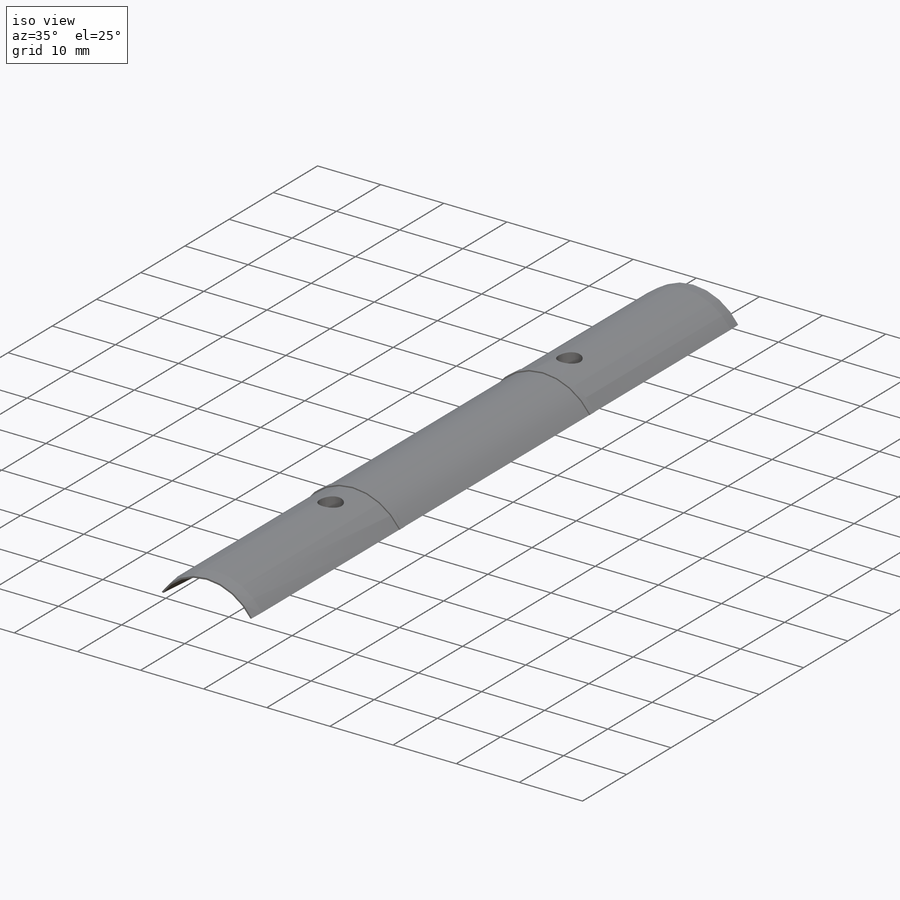
[diagram: iso view]
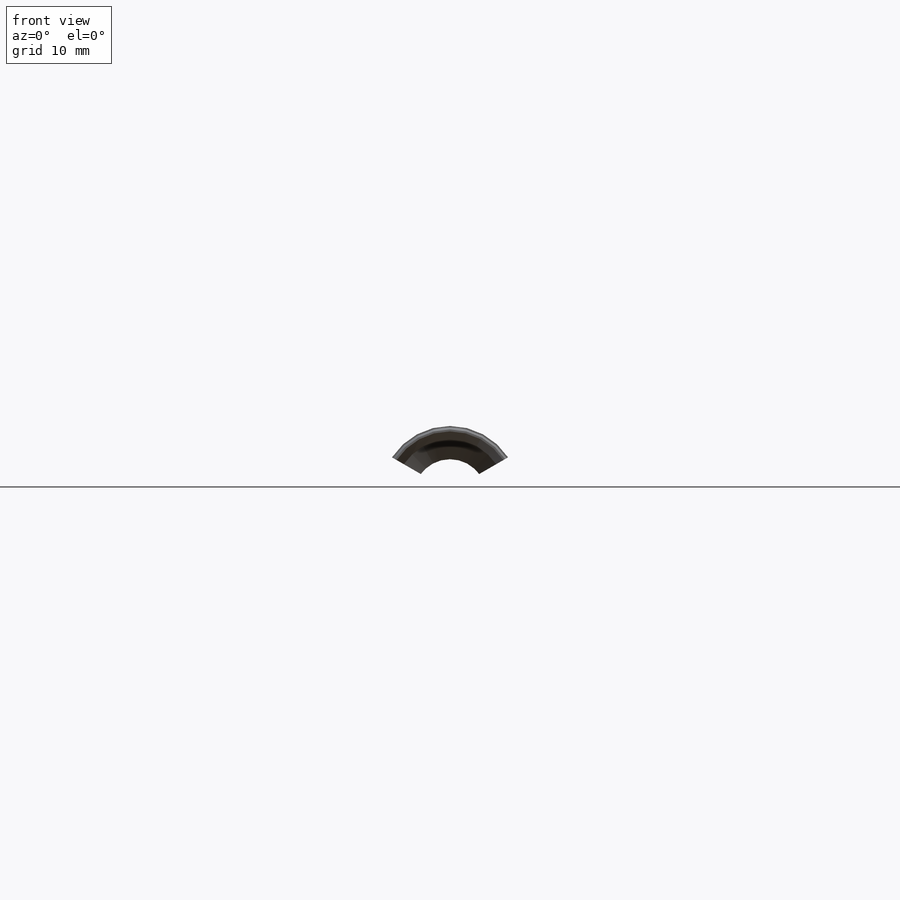
[diagram: front view]
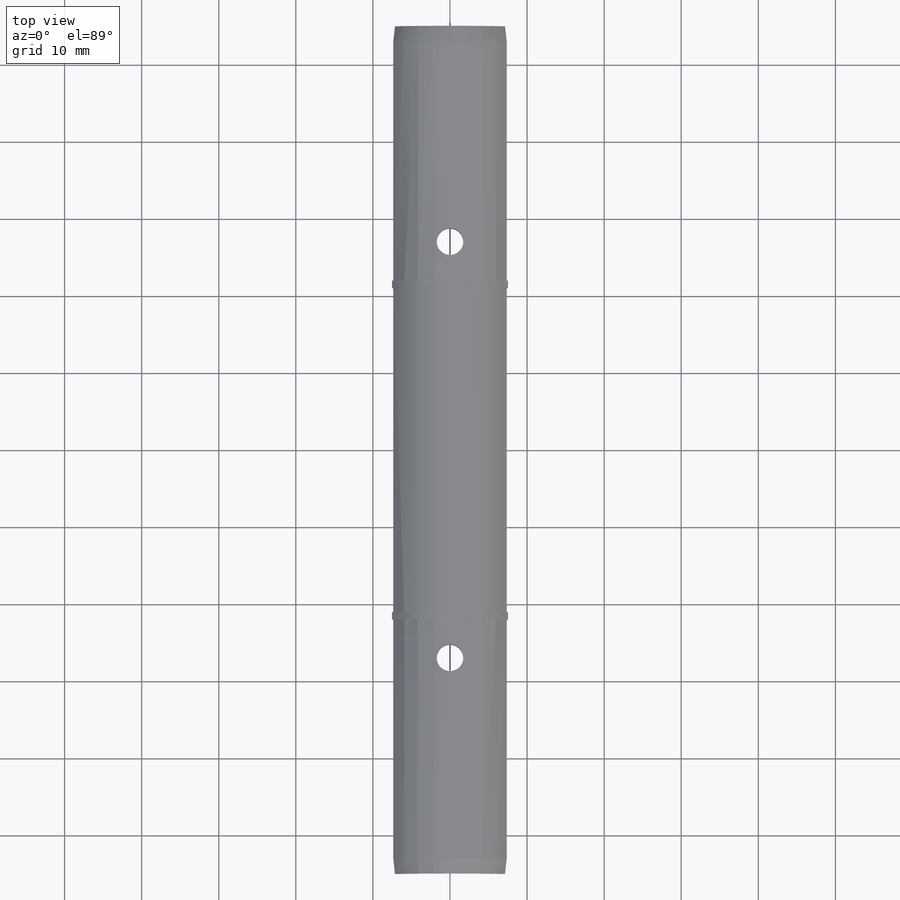
[diagram: top view]
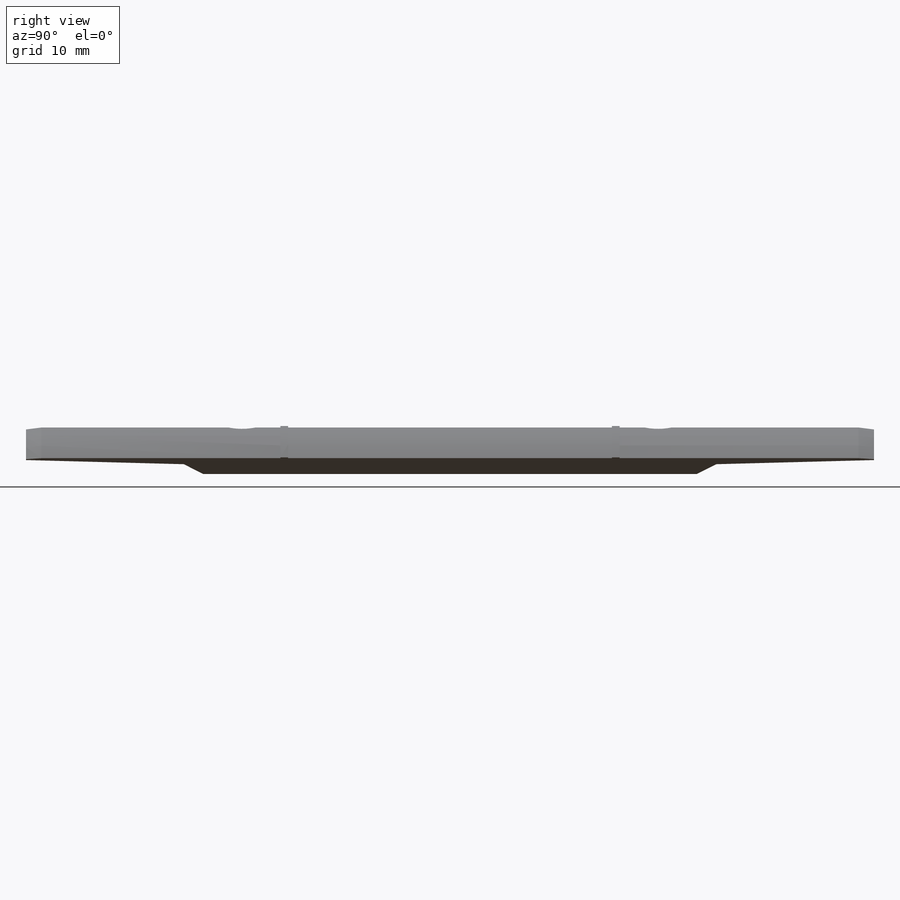
[diagram: right view]
SOLIDWORKS PART (.sldprt)
format: sldprt  version: not decoded by parser v0  size: 274,432 bytes
history: native  units: mm
features: sketch x4, material x1, revolve x1, hole x1, thread x1, cut_extrude x1, mirror x1 (+11 scaffold rows collapsed)
feature tree (21):
  scaffold x11  (default folders/planes/origin — collapsed)
  material  "Material <not specified>"
  sketch  "Sketch1"  dims[c1.D1=70.0mm c1.D2=17.6mm c1.D3=8.128mm c1.D4=1.0mm c1.D5=~47.708861mm c2.D5=8.0deg c2.D4=2.0mm c2.D6=2.736mm c2.D1=4.1148mm c2.D3=48.0mm c3.D6=0.25mm c3.D7=0.2mm c3.D8=21.0mm c3.D9=1.0mm c3.D2=9.0mm c3.D3=2.0mm c3.D4=0.25mm c3.D5=0.25mm c4.D6=23.0mm c4.D10=32.0mm c4.D11=~22.555238mm c5.D11=3.0deg c5.D12=~2.42864mm c6.D12=225.0deg]
  revolve  "Revolve1"  Angle=360deg
  hole  "#8-32 Tapped Hole1"  [1 undecoded]
  sketch  "3DSketch1"  dims[D1=27.0mm]
  thread  "Hole Thread1"  Diameter=4.444787mm  [1 undecoded]
  sketch  "Sketch2"  dims[hole-wizard template sketch: 47 standard entries collapsed; hole parameters kept: c15.Tap Drill Depth=10.0mm c15.D3=~14.816244mm c15.Drill Angle=118.0deg]
  sketch  "Sketch3"  dims[c1.D1=~41.012847mm c2.D1=30.0deg c2.D2=~29.075507mm c3.D2=30.0deg c3.D1=~36.52097mm c4.D1=120.0deg c4.D2=0.5mm]
  cut_extrude  "Cut-Extrude1"  [1 undecoded]
  mirror  "Mirror1"
decode coverage: 6 of 9 modeling features carry decoded parameters
note: ~ marks probable driven/reference dimensions
note: 3 parameter values undecoded
note: suppression state not decoded; provenance and decode notes live in map.json
